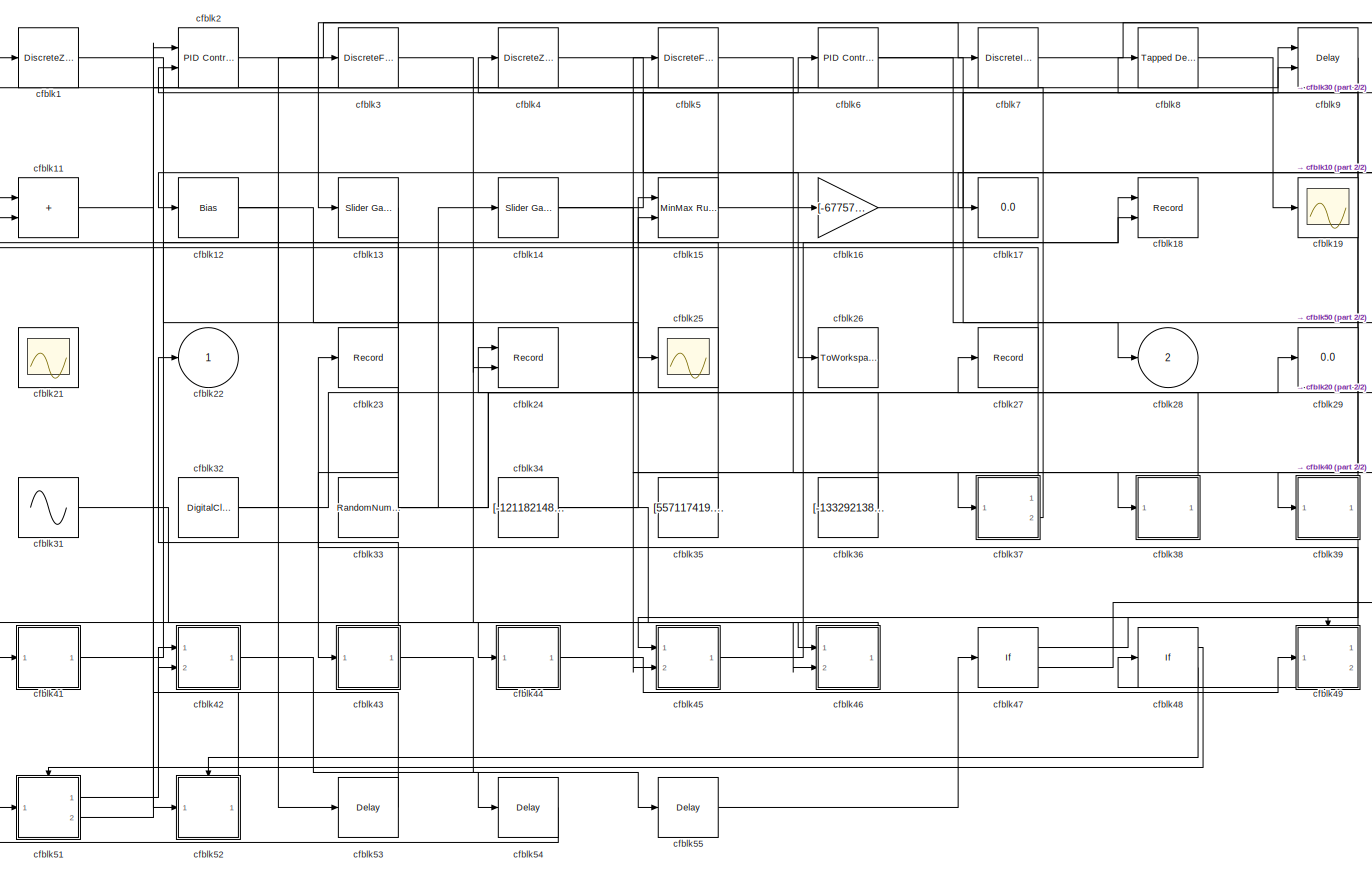
[diagram: root canvas - part 1/2, most of the canvas]
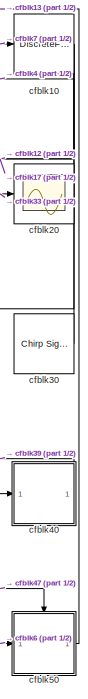
[diagram: root canvas - part 2/2, right side, full height]
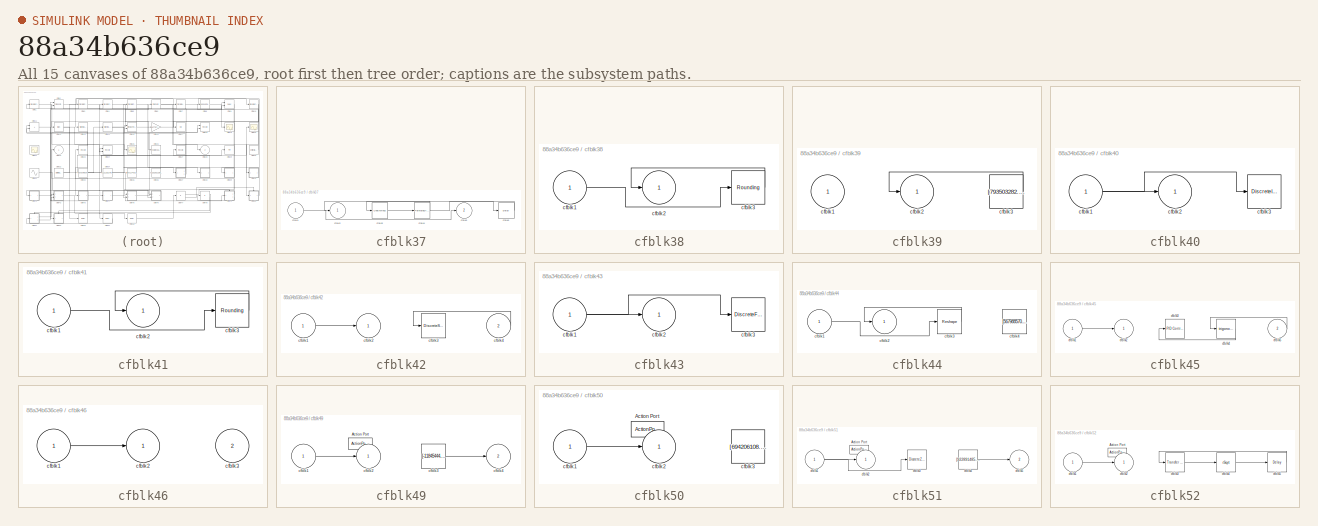
[diagram: thumbnail index - all 15 canvases of the model, root first then tree order]
MODEL slx_88a34b636ce9
KIND model
CONFIG AbsTol = auto
CONFIG EnableMultiTasking = off
CONFIG FixedStep = auto
CONFIG MaxStep = auto
CONFIG MinStep = auto
CONFIG RelTol = 1e-3
CONFIG SampleTimeConstraint = Unconstrained
CONFIG SolverName = VariableStepAuto
CONFIG StartTime = 0.0
CONFIG StopTime = 10.0
BLOCK [DiscreteZeroPole] cfblk1
  Gain = 1
  Poles = [0 0.5]
BLOCK [DiscreteFir] cfblk10
  InputPortMap = u0
  OutputPortMap = o0
  Ports = [1, 1]
  SampleTime = 1
BLOCK [Sum] cfblk11
  IconShape = rectangular
  Ports = [2, 1]
BLOCK [Bias] cfblk12
  Bias = [-92799467.804790]
  SaturateOnIntegerOverflow = off
BLOCK [Reference] cfblk13  REF=simulink/Math
Operations/Slider
Gain
  Ports = [1, 1]
  SourceBlock = simulink/Math\nOperations/Slider\nGain
  SourceProductBaseCode = SL
  SourceType = Slider Gain
BLOCK [Reference] cfblk14  REF=simulink/Math
Operations/Slider
Gain
  Ports = [1, 1]
  SourceBlock = simulink/Math\nOperations/Slider\nGain
  SourceProductBaseCode = SL
  SourceType = Slider Gain
BLOCK [Reference] cfblk15  REF=simulink/Math
Operations/MinMax
Running
Resettable
  Ports = [2, 1]
  SourceBlock = simulink/Math\nOperations/MinMax\nRunning\nResettable
  SourceProductBaseCode = SL
  SourceType = MinMax Running Resettable
BLOCK [Gain] cfblk16
  Gain = [-67757267.276996]
BLOCK [Display] cfblk17
  Decimation = 1
  Ports = [1]
BLOCK [Record] cfblk18
  CompatibilityTag = XY
  FileSettingsInternal = {"entries":[{"content":{"excelSettings":{"content":{},"type":"Streamout.ExcelSettings"}},"type":"Streamout.FileSettingStorage","uuid":"50096372-5f0e-4112-aa63-4c8a598113a1"}],"packageUris":["http://schema.mathworks.com/mf0/streamout_blocks/R2020a"],"version":"1.0"}
  Layout = [1 1]
  Ports = [2]
  SignalsInternal = {"entries":[{"content":{"signals":[{"content":{"blockPath":["sampleModel247/cfblk18"],"channel":[],"dimensions":[1],"domain":"sampleModel247/cfblk18","lineColor":"#a2142f","plots":[1],"port":1,"sid":[""],"signalID":9909,"signalName":"cfblk45"},"type":"RecordBlkView.Signal","uuid":"aa4d90a0-5d8e-47c5-9d11-5ce5a1816fc1"},{"content":{"blockPath":["sampleModel247/cfblk18"],"channel":[],"dimensions":[1...<+383ch>
  VisualizationBindings = {"xyplotplugin":{"info":[{"series":[{"bindingParametersList":[{"parameter":"X-Axis","signalID":9909,"signalName":"cfblk45"},{"parameter":"Y-Axis","signalID":9913,"signalName":"cfblk41"}],"seriesID":29595}],"subplotID":1}]}}
BLOCK [Scope] cfblk19
  Floating = off
  NumInputPorts = 1
  Ports = [1]
BLOCK [Reference] cfblk2  REF=slpidlib/PID Controller (2DOF)
  Ports = [2, 1]
  SourceBlock = slpidlib/PID Controller (2DOF)
  SourceProductBaseCode = SL
  SourceType = PID 2dof
BLOCK [Scope] cfblk20
  Floating = off
  NumInputPorts = 1
  Ports = [1]
BLOCK [Scope] cfblk21
  Floating = on
  NumInputPorts = 1
  Ports = []
BLOCK [Outport] cfblk22
BLOCK [Record] cfblk23
  FileSettingsInternal = {"entries":[{"content":{"excelSettings":{"content":{},"type":"Streamout.ExcelSettings"}},"type":"Streamout.FileSettingStorage","uuid":"c50a6524-f57d-4f2e-ad32-3c98e3ea5391"}],"packageUris":["http://schema.mathworks.com/mf0/streamout_blocks/R2020a"],"version":"1.0"}
  Ports = [1]
  SignalsInternal = {"entries":[{"content":{"signals":[{"content":{"blockPath":["sampleModel247/cfblk23"],"channel":[],"dimensions":[1],"domain":"sampleModel247/cfblk23","lineColor":"#fe330a","plots":[1],"port":1,"sid":[""],"signalID":9905,"signalName":"cfblk49:1"},"type":"RecordBlkView.Signal","uuid":"2e2b0c2e-5849-4501-8eb6-6644b8aaf153"}]},"type":"RecordBlkView.InputSignals","uuid":"dcdcd0a2-123b-4c8f-ae95-cc413fb...<+99ch>
  VisualizationBindings = {"sparklinesplugin":{"info":[{"bindingParametersList":[],"subplotID":1}]}}
BLOCK [Record] cfblk24
  CompatibilityTag = XY
  FileSettingsInternal = {"entries":[{"content":{"excelSettings":{"content":{},"type":"Streamout.ExcelSettings"}},"type":"Streamout.FileSettingStorage","uuid":"83cb2439-b11e-402a-a772-0550102eca95"}],"packageUris":["http://schema.mathworks.com/mf0/streamout_blocks/R2020a"],"version":"1.0"}
  Layout = [1 1]
  Ports = [2]
  SignalsInternal = {"entries":[{"content":{"signals":[{"content":{"blockPath":["sampleModel247/cfblk24"],"channel":[],"dimensions":[1],"domain":"sampleModel247/cfblk24","lineColor":"#a2142f","plots":[1],"port":1,"sid":[""],"signalID":9917,"signalName":"cfblk36"},"type":"RecordBlkView.Signal","uuid":"6c5d17f1-40fe-49e8-b85d-e60a1888005e"},{"content":{"blockPath":["sampleModel247/cfblk24"],"channel":[],"dimensions":[1...<+383ch>
  VisualizationBindings = {"xyplotplugin":{"info":[{"series":[{"bindingParametersList":[{"parameter":"X-Axis","signalID":9917,"signalName":"cfblk36"},{"parameter":"Y-Axis","signalID":9921,"signalName":"cfblk12"}],"seriesID":25675}],"subplotID":1}]}}
BLOCK [Scope] cfblk25
  Floating = off
  NumInputPorts = 1
  Ports = [1]
BLOCK [ToWorkspace] cfblk26
  FixptAsFi = on
  MaxDataPoints = inf
  Ports = [1]
  SampleTime = -1
  SaveFormat = Timeseries
  VariableName = ufgvlka
BLOCK [Record] cfblk27
  FileSettingsInternal = {"entries":[{"content":{"excelSettings":{"content":{},"type":"Streamout.ExcelSettings"}},"type":"Streamout.FileSettingStorage","uuid":"41cf0d65-2998-45d5-a42d-6c085b081fde"}],"packageUris":["http://schema.mathworks.com/mf0/streamout_blocks/R2020a"],"version":"1.0"}
  Ports = [1]
  SignalsInternal = {"entries":[{"content":{"signals":[{"content":{"blockPath":["sampleModel247/cfblk27"],"channel":[],"dimensions":[1],"domain":"sampleModel247/cfblk27","lineColor":"#7e2f8e","plots":[1],"port":1,"sid":[""],"signalID":9925,"signalName":"cfblk38"},"type":"RecordBlkView.Signal","uuid":"d965c552-fc37-4652-abf1-fbe1d1575c18"}]},"type":"RecordBlkView.InputSignals","uuid":"99780556-5dc1-45ee-99ac-582fc1a69...<+97ch>
  VisualizationBindings = {"sparklinesplugin":{"info":[{"bindingParametersList":[],"subplotID":1}]}}
BLOCK [Outport] cfblk28
  Port = 2
BLOCK [Display] cfblk29
  Decimation = 1
  Ports = [1]
BLOCK [DiscreteFir] cfblk3
  InputPortMap = u0
  OutputPortMap = o0
  Ports = [1, 1]
  SampleTime = 1
BLOCK [Reference] cfblk30  REF=simulink/Sources/Chirp Signal
  Ports = [0, 1]
  SourceBlock = simulink/Sources/Chirp Signal
  SourceProductBaseCode = SL
  SourceType = chirp
BLOCK [Sin] cfblk31
  Amplitude = [-225560125.416311]
  Bias = [520940837.537287]
  Ports = [0, 1]
  SampleTime = 0
BLOCK [DigitalClock] cfblk32
BLOCK [RandomNumber] cfblk33
  Mean = [45800.156560]
  SampleTime = 0.1
  Seed = [566031751.000000]
  Variance = [12298.572523]
BLOCK [Constant] cfblk34
  SampleTime = 1
  Value = [-121182148.335589]
BLOCK [Constant] cfblk35
  SampleTime = 1
  Value = [557117419.883436]
BLOCK [Constant] cfblk36
  SampleTime = 1
  Value = [-133292138.350035]
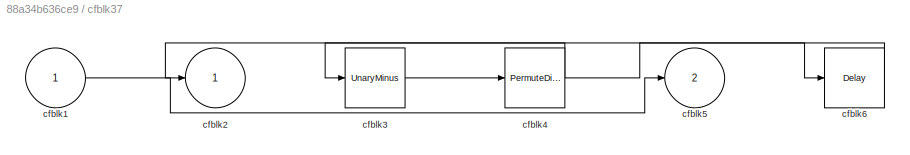
BLOCK [SubSystem] cfblk37
  Ports = [1, 2]
  RequestExecContextInheritance = off
BLOCK [Inport] cfblk37/cfblk1
BLOCK [Outport] cfblk37/cfblk2
BLOCK [UnaryMinus] cfblk37/cfblk3
BLOCK [PermuteDimensions] cfblk37/cfblk4
BLOCK [Outport] cfblk37/cfblk5
  Port = 2
BLOCK [Delay] cfblk37/cfblk6
  InputPortMap = u0
  Ports = [1, 1]
  SampleTime = 1
BLOCK [SubSystem] cfblk38
  Ports = [1, 1]
  RequestExecContextInheritance = off
BLOCK [Inport] cfblk38/cfblk1
BLOCK [Outport] cfblk38/cfblk2
BLOCK [Rounding] cfblk38/cfblk3
BLOCK [SubSystem] cfblk39
  Ports = [1, 1]
  RequestExecContextInheritance = off
BLOCK [Inport] cfblk39/cfblk1
BLOCK [Outport] cfblk39/cfblk2
BLOCK [Constant] cfblk39/cfblk3
  SampleTime = 1
  Value = [793503282.907187]
BLOCK [DiscreteZeroPole] cfblk4
  Gain = 1
  Poles = [0 0.5]
BLOCK [SubSystem] cfblk40
  Ports = [1, 1]
  RequestExecContextInheritance = off
BLOCK [Inport] cfblk40/cfblk1
BLOCK [Outport] cfblk40/cfblk2
BLOCK [DiscreteIntegrator] cfblk40/cfblk3
  ICPrevOutput = DiscIntNeverNeededParam
  ICPrevScaledInput = DiscIntNeverNeededParam
  InitialConditionSetting = Auto
  Ports = [1, 1]
BLOCK [SubSystem] cfblk41
  Ports = [1, 1]
  RequestExecContextInheritance = off
BLOCK [Inport] cfblk41/cfblk1
BLOCK [Outport] cfblk41/cfblk2
BLOCK [Rounding] cfblk41/cfblk3
BLOCK [SubSystem] cfblk42
  Ports = [2, 1]
  RequestExecContextInheritance = off
BLOCK [Inport] cfblk42/cfblk1
BLOCK [Outport] cfblk42/cfblk2
BLOCK [DiscreteStateSpace] cfblk42/cfblk3
BLOCK [Inport] cfblk42/cfblk4
  Port = 2
BLOCK [SubSystem] cfblk43
  Ports = [1, 1]
  RequestExecContextInheritance = off
BLOCK [Inport] cfblk43/cfblk1
BLOCK [Outport] cfblk43/cfblk2
BLOCK [DiscreteFir] cfblk43/cfblk3
  InputPortMap = u0
  OutputPortMap = o0
  Ports = [1, 1]
  SampleTime = 1
BLOCK [SubSystem] cfblk44
  Ports = [1, 1]
  RequestExecContextInheritance = off
BLOCK [Inport] cfblk44/cfblk1
BLOCK [Outport] cfblk44/cfblk2
BLOCK [Reshape] cfblk44/cfblk3
  Ports = [1, 1]
BLOCK [Constant] cfblk44/cfblk4
  SampleTime = 1
  Value = [567988570.673220]
BLOCK [SubSystem] cfblk45
  Ports = [2, 1]
  RequestExecContextInheritance = off
BLOCK [Inport] cfblk45/cfblk1
BLOCK [Outport] cfblk45/cfblk2
BLOCK [Reference] cfblk45/cfblk3  REF=slpidlib/PID Controller
  Ports = [1, 1]
  SourceBlock = slpidlib/PID Controller
  SourceProductBaseCode = SL
  SourceType = PID 1dof
BLOCK [Trigonometry] cfblk45/cfblk4
  Ports = [1, 1]
BLOCK [Inport] cfblk45/cfblk5
  Port = 2
BLOCK [SubSystem] cfblk46
  Ports = [2, 1]
  RequestExecContextInheritance = off
BLOCK [Inport] cfblk46/cfblk1
BLOCK [Outport] cfblk46/cfblk2
BLOCK [Inport] cfblk46/cfblk3
  Port = 2
BLOCK [If] cfblk47
  IfExpression = u1 >= 0
  Ports = [1, 2]
  SampleTime = 1
BLOCK [If] cfblk48
  IfExpression = u1 >= 0
  Ports = [1, 2]
  SampleTime = 1
BLOCK [SubSystem] cfblk49
  Ports = [1, 2, 0, 0, 0, 0, 0, 1]
  RequestExecContextInheritance = off
  TreatAsAtomicUnit = on
BLOCK [ActionPort] cfblk49/Action Port
  ActionPortLabel = if(u1 >= 0)
BLOCK [Inport] cfblk49/cfblk1
BLOCK [Outport] cfblk49/cfblk2
BLOCK [Constant] cfblk49/cfblk3
  SampleTime = 1
  Value = [-11845444.557252]
BLOCK [Outport] cfblk49/cfblk4
  Port = 2
BLOCK [DiscreteFilter] cfblk5
  InputPortMap = u0
  Ports = [1, 1]
  SampleTime = 1
BLOCK [SubSystem] cfblk50
  Ports = [1, 1, 0, 0, 0, 0, 0, 1]
  RequestExecContextInheritance = off
  TreatAsAtomicUnit = on
BLOCK [ActionPort] cfblk50/Action Port
  ActionPortLabel = else
BLOCK [Inport] cfblk50/cfblk1
BLOCK [Outport] cfblk50/cfblk2
BLOCK [Constant] cfblk50/cfblk3
  SampleTime = 1
  Value = [694206108.378057]
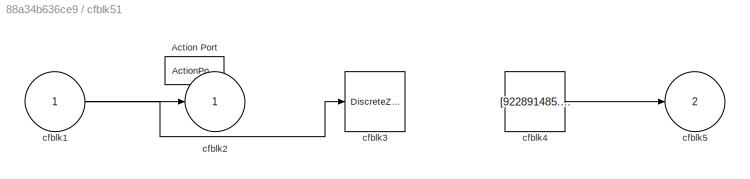
BLOCK [SubSystem] cfblk51
  Ports = [1, 2, 0, 0, 0, 0, 0, 1]
  RequestExecContextInheritance = off
  TreatAsAtomicUnit = on
BLOCK [ActionPort] cfblk51/Action Port
  ActionPortLabel = if(u1 >= 0)
BLOCK [Inport] cfblk51/cfblk1
BLOCK [Outport] cfblk51/cfblk2
BLOCK [DiscreteZeroPole] cfblk51/cfblk3
  Gain = 1
  Poles = [0 0.5]
  SampleTime = -1
BLOCK [Constant] cfblk51/cfblk4
  SampleTime = 1
  Value = [922891485.814443]
BLOCK [Outport] cfblk51/cfblk5
  Port = 2
BLOCK [SubSystem] cfblk52
  Ports = [1, 1, 0, 0, 0, 0, 0, 1]
  RequestExecContextInheritance = off
  TreatAsAtomicUnit = on
BLOCK [ActionPort] cfblk52/Action Port
  ActionPortLabel = else
BLOCK [Inport] cfblk52/cfblk1
BLOCK [Outport] cfblk52/cfblk2
BLOCK [Reference] cfblk52/cfblk3  REF=simulink/Discrete/Transfer Fcn
First Order
  Ports = [1, 1]
  SourceBlock = simulink/Discrete/Transfer Fcn\nFirst Order
  SourceProductBaseCode = SL
  SourceType = First Order Transfer Fcn
BLOCK [Sqrt] cfblk52/cfblk4
  AlgorithmType = Newton-Raphson
  Operator = rSqrt
BLOCK [Delay] cfblk52/cfblk5
  InputPortMap = u0
  Ports = [1, 1]
BLOCK [Delay] cfblk53
  InputPortMap = u0
  Ports = [1, 1]
  SampleTime = 1
BLOCK [Delay] cfblk54
  InputPortMap = u0
  Ports = [1, 1]
  SampleTime = 1
BLOCK [Delay] cfblk55
  InputPortMap = u0
  Ports = [1, 1]
  SampleTime = 1
BLOCK [Reference] cfblk6  REF=slpidlib/PID Controller
  Ports = [1, 1]
  SourceBlock = slpidlib/PID Controller
  SourceProductBaseCode = SL
  SourceType = PID 1dof
BLOCK [DiscreteIntegrator] cfblk7
  ICPrevOutput = DiscIntNeverNeededParam
  ICPrevScaledInput = DiscIntNeverNeededParam
  InitialConditionSetting = Auto
  Ports = [1, 1]
BLOCK [Reference] cfblk8  REF=simulink/Discrete/Tapped Delay
  Ports = [1, 1]
  SourceBlock = simulink/Discrete/Tapped Delay
  SourceProductBaseCode = SL
  SourceType = Tapped Delay Line
BLOCK [Delay] cfblk9
  InputPortMap = u0,e6
  Ports = [2, 1]
  SampleTime = 1
  ShowEnablePort = on
NET cfblk10:1 -> cfblk12:1, cfblk17:1, cfblk40:1
LINE cfblk11:1 -> cfblk52:1
NET cfblk12:1 -> cfblk24:2, cfblk53:1
LINE cfblk13:1 -> cfblk43:1
NET cfblk14:1 -> cfblk37:1, cfblk6:1
NET cfblk15:1 -> cfblk16:1, cfblk2:2
LINE cfblk16:1 -> cfblk9:1
LINE cfblk1:1 -> cfblk25:1
LINE cfblk2:1 -> cfblk7:1
LINE cfblk30:1 -> cfblk4:1
LINE cfblk31:1 -> cfblk44:1
NET cfblk32:1 -> cfblk3:1, cfblk5:1
NET cfblk33:1 -> cfblk11:2, cfblk14:1, cfblk20:1, cfblk29:1
NET cfblk34:1 -> cfblk15:2, cfblk46:2
LINE cfblk35:1 -> cfblk15:1
LINE cfblk36:1 -> cfblk24:1
LINE cfblk37/cfblk1:1 -> cfblk37/cfblk5:1
LINE cfblk37/cfblk3:1 -> cfblk37/cfblk4:1
NET cfblk37/cfblk4:1 -> cfblk37/cfblk2:1, cfblk37/cfblk6:1
LINE cfblk37/cfblk6:1 -> cfblk37/cfblk3:1
LINE cfblk37:1 -> cfblk11:1
LINE cfblk37:2 -> cfblk1:1
LINE cfblk38/cfblk1:1 -> cfblk38/cfblk3:1
LINE cfblk38/cfblk3:1 -> cfblk38/cfblk2:1
LINE cfblk38:1 -> cfblk27:1
LINE cfblk39/cfblk3:1 -> cfblk39/cfblk2:1
NET cfblk39:1 -> cfblk45:1, cfblk8:1
LINE cfblk3:1 -> cfblk46:1
NET cfblk40/cfblk1:1 -> cfblk40/cfblk2:1, cfblk40/cfblk3:1
LINE cfblk40:1 -> cfblk39:1
LINE cfblk41/cfblk1:1 -> cfblk41/cfblk3:1
LINE cfblk41/cfblk3:1 -> cfblk41/cfblk2:1
LINE cfblk41:1 -> cfblk18:2
LINE cfblk42/cfblk1:1 -> cfblk42/cfblk2:1
LINE cfblk42/cfblk4:1 -> cfblk42/cfblk3:1
LINE cfblk42:1 -> cfblk54:1
NET cfblk43/cfblk1:1 -> cfblk43/cfblk2:1, cfblk43/cfblk3:1
NET cfblk43:1 -> cfblk22:1, cfblk55:1
LINE cfblk44/cfblk1:1 -> cfblk44/cfblk3:1
LINE cfblk44/cfblk3:1 -> cfblk44/cfblk2:1
LINE cfblk44:1 -> cfblk49:1
LINE cfblk45/cfblk1:1 -> cfblk45/cfblk2:1
LINE cfblk45/cfblk4:1 -> cfblk45/cfblk3:1
LINE cfblk45/cfblk5:1 -> cfblk45/cfblk4:1
LINE cfblk45:1 -> cfblk18:1
LINE cfblk46/cfblk1:1 -> cfblk46/cfblk2:1
LINE cfblk46:1 -> cfblk41:1
LINE cfblk47:1 -> cfblk49:ifaction
LINE cfblk47:2 -> cfblk50:ifaction
LINE cfblk48:1 -> cfblk51:ifaction
LINE cfblk48:2 -> cfblk52:ifaction
LINE cfblk49/cfblk1:1 -> cfblk49/cfblk2:1
LINE cfblk49/cfblk3:1 -> cfblk49/cfblk4:1
LINE cfblk49:1 -> cfblk23:1
LINE cfblk49:2 -> cfblk48:1
LINE cfblk4:1 -> cfblk26:1
LINE cfblk50/cfblk1:1 -> cfblk50/cfblk2:1
LINE cfblk50:1 -> cfblk13:1
NET cfblk51/cfblk1:1 -> cfblk51/cfblk2:1, cfblk51/cfblk3:1
LINE cfblk51/cfblk4:1 -> cfblk51/cfblk5:1
LINE cfblk51:1 -> cfblk42:2
LINE cfblk51:2 -> cfblk9:2
LINE cfblk52/cfblk1:1 -> cfblk52/cfblk2:1
LINE cfblk52/cfblk3:1 -> cfblk52/cfblk4:1
LINE cfblk52/cfblk4:1 -> cfblk52/cfblk5:1
LINE cfblk52/cfblk5:1 -> cfblk52/cfblk3:1
LINE cfblk52:1 -> cfblk42:1
LINE cfblk53:1 -> cfblk2:1
LINE cfblk54:1 -> cfblk51:1
LINE cfblk55:1 -> cfblk47:1
LINE cfblk5:1 -> cfblk38:1
NET cfblk6:1 -> cfblk28:1, cfblk50:1
LINE cfblk7:1 -> cfblk10:1
LINE cfblk8:1 -> cfblk19:1
LINE cfblk9:1 -> cfblk45:2
note: NET lines group one-source signal fan-out (src -> all destinations, sorted); 1:1 wires keep LINE
